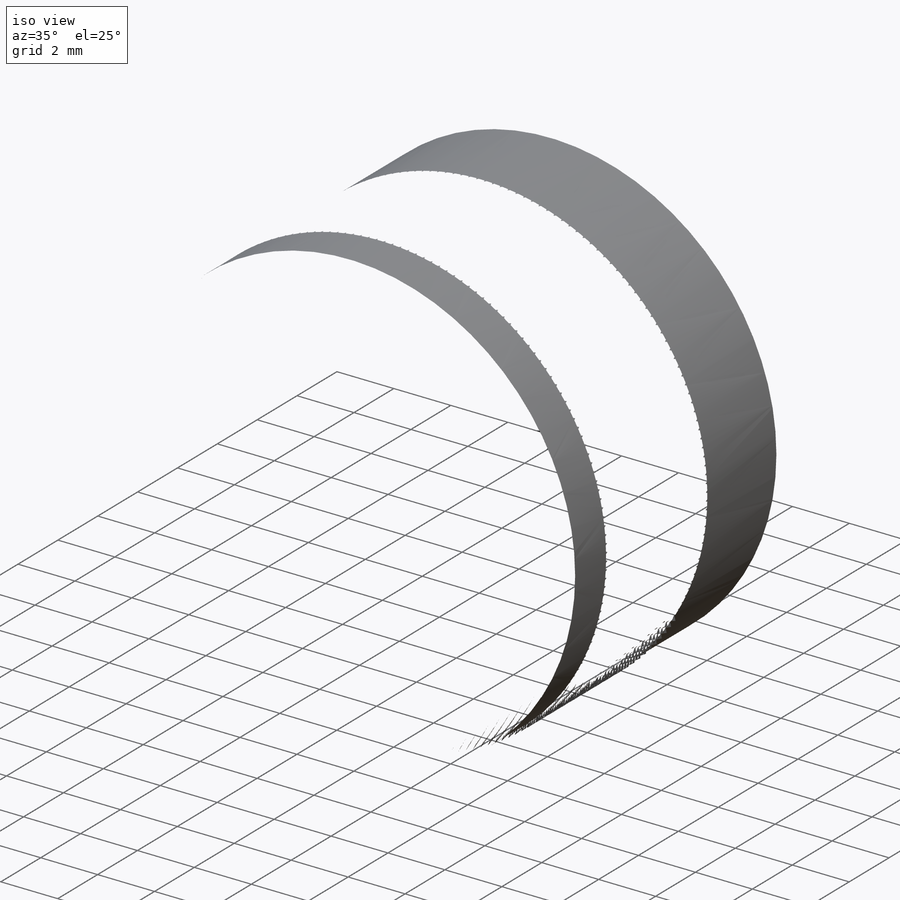
[diagram: iso view]
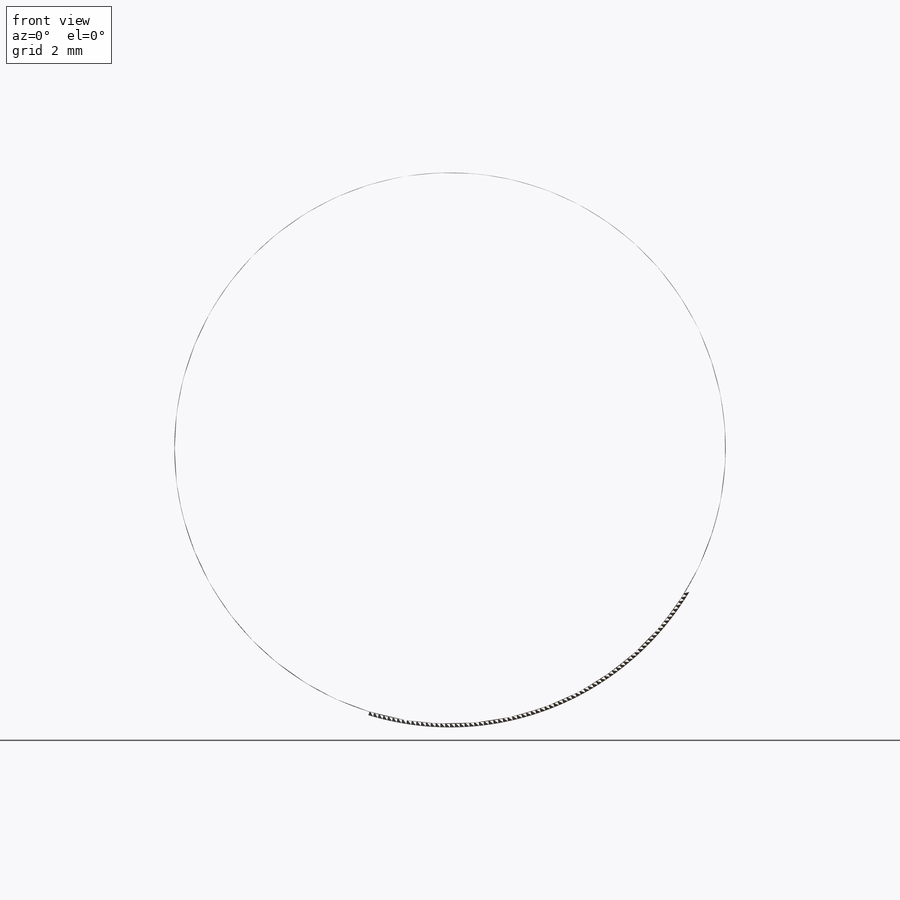
[diagram: front view]
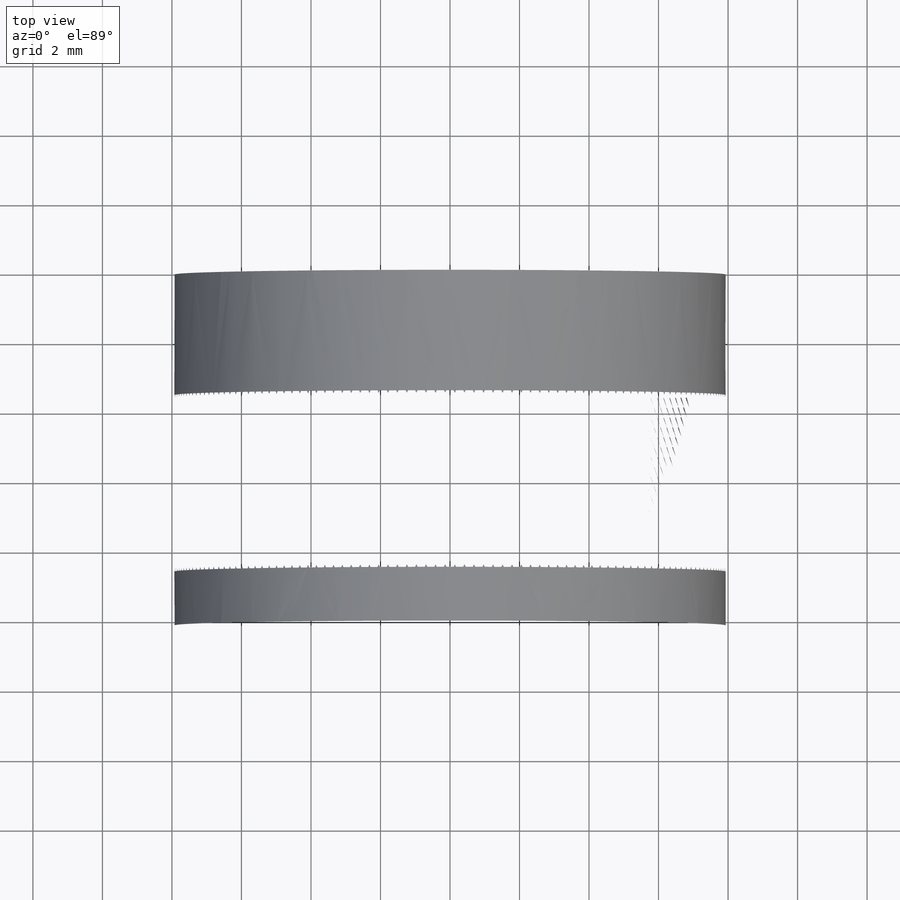
[diagram: top view]
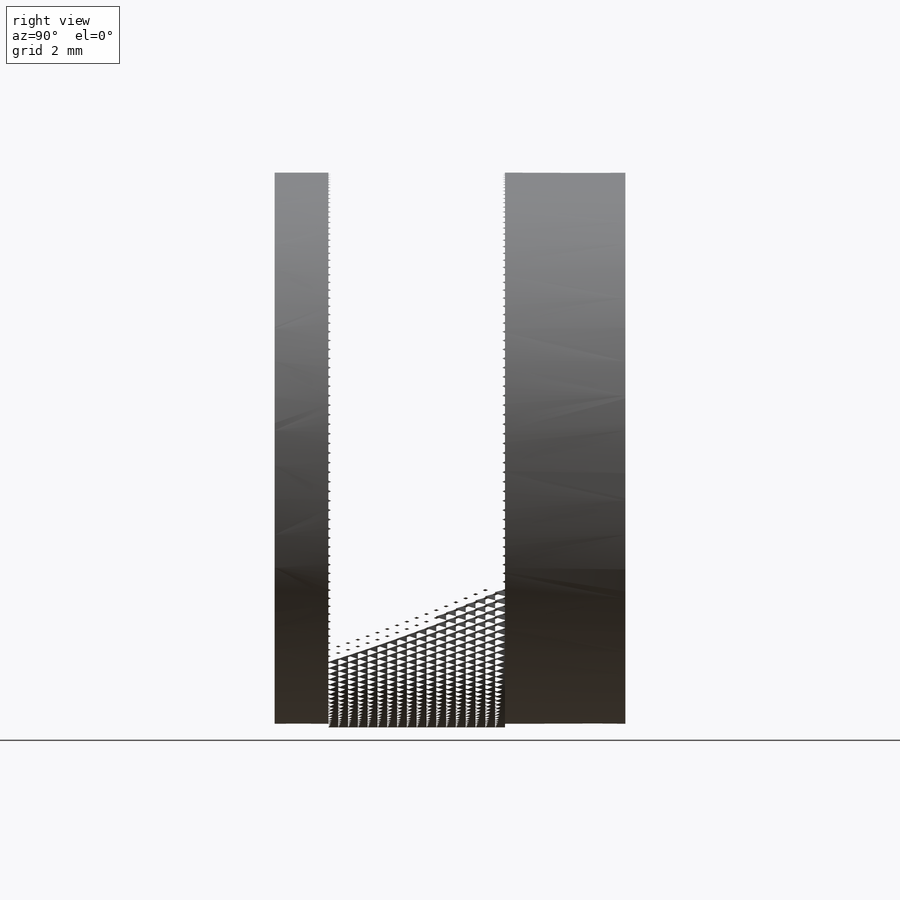
[diagram: right view]
SOLIDWORKS PART (.sldprt)
format: sldprt  version: not decoded by parser v0  size: 17,570,304 bytes
history: native  units: mm
features: sketch x11, extrude x3, cut_extrude x3, helix x2, sweep x2, material x1, plane x1, fillet x1 (+15 scaffold rows collapsed)
feature tree (39):
  scaffold x15  (default folders/planes/origin — collapsed)
  material  "Stainless Steel (ferritic)"
  sketch  "Sketch1"  dims[D1=15.8623mm]
  extrude  "Extrude1"  Depth=10.3505mm
  sketch  "Sketch2"  dims[D1=11.1887mm]
  extrude  "Extrude3"  Depth=1.6383mm
  sketch  "Sketch3"  dims[D1=9.8425mm]
  cut_extrude  "Extrude4"  Depth=3.175mm
  sketch  "Sketch5"  dims[D1=1.3335mm]
  cut_extrude  "Extrude5"  Depth=0.6985mm
  sketch  "Sketch6"  dims[D1=9.0551mm]
  extrude  "Extrude6"  Depth=2.7686mm
  sketch  "Sketch7"  dims[D1=6.9215mm]
  cut_extrude  "Extrude7"  [1 undecoded]
  plane  "Plane1"  Offset=3.5941mm
  sketch  "Sketch8"  dims[D1=16.0655mm]
  sketch  "Sketch9"
  sketch  "Sketch10"
  helix  "Helix/Spiral1"  Pitch=5.08mm
  sweep  "Sweep2"
  sketch  "Sketch11"
  helix  "Helix/Spiral2"  Pitch=5.08mm
  sweep  "Sweep3"
  sketch  "Sketch9<2>"
  fillet  "Fillet2"  Radius=0.127mm
decode coverage: 15 of 22 modeling features carry decoded parameters
note: 1 parameter value undecoded
note: suppression state not decoded; provenance and decode notes live in map.json
